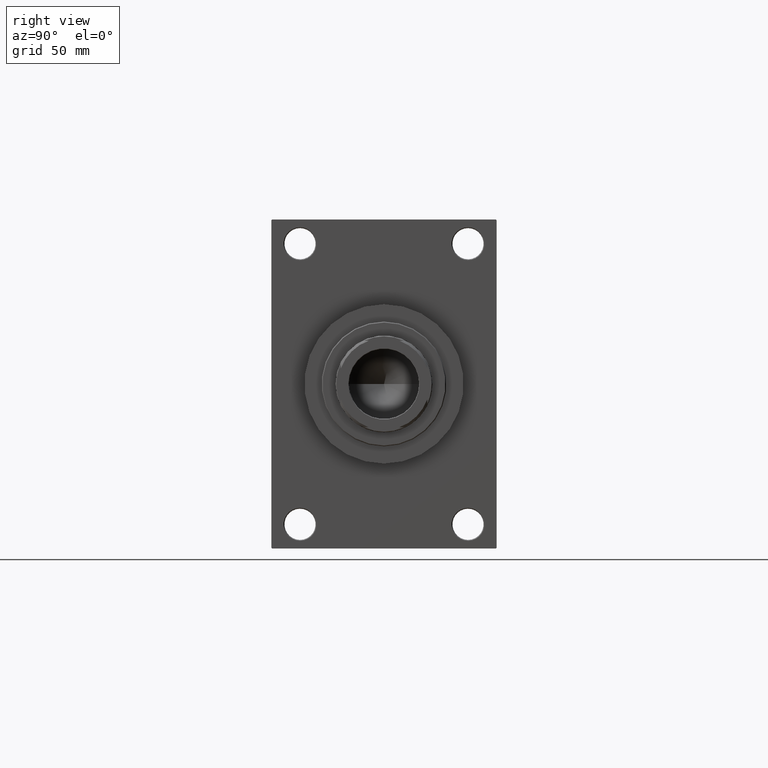
[diagram: clean part render]
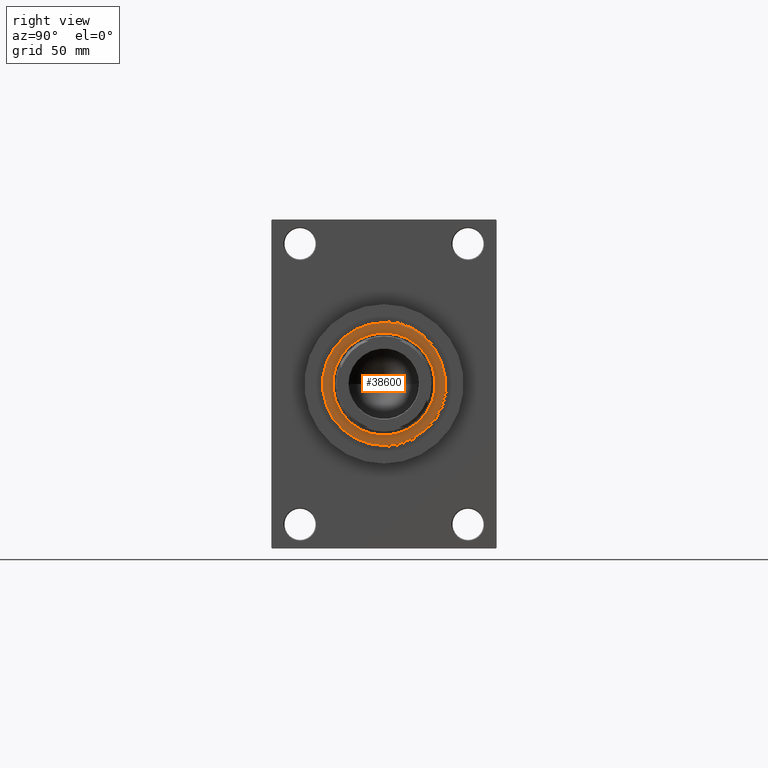
[diagram: same view with one face highlighted and labeled with its STEP entity id]
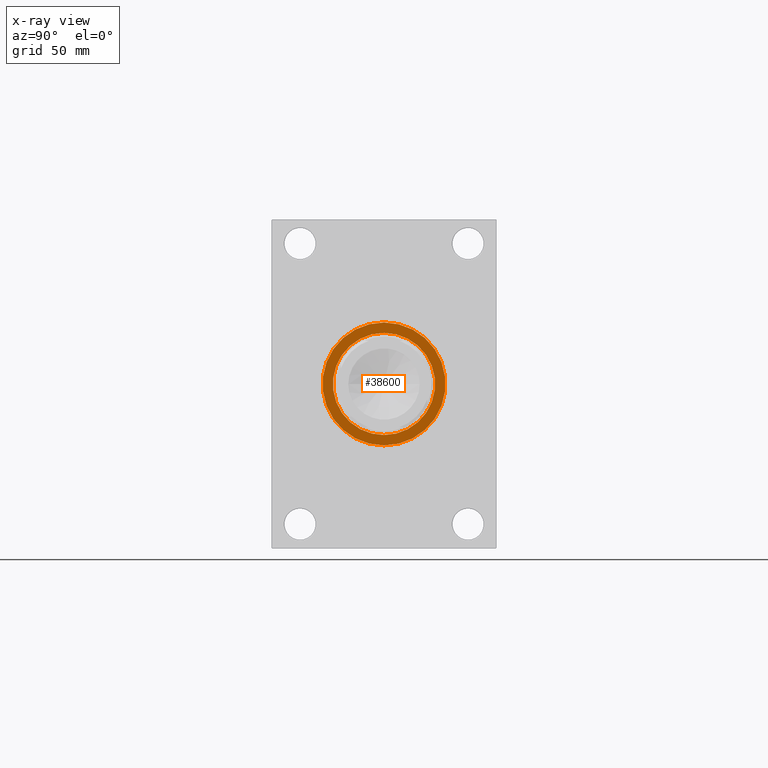
[diagram: x-ray of the same camera — body ghosted, the highlighted face saturated]
A machine part, right view. The second image highlights one B-rep face of the part: STEP entity #38600.
The next image is the same camera in x-ray: the body ghosted, the highlighted face saturated — about 0% of this face is hidden behind the body in this view.
In plain terms, the highlighted planar face has unit normal (1, -0, -0).
Its self-contained STEP definition (entity closure, byte-faithful):
#1254 = VERTEX_POINT ( 'NONE', #12916 ) ;
#1469 = CARTESIAN_POINT ( 'NONE',  ( -29.50000000000000355, 3.612708057484692393E-15, 53.26000000000000512 ) ) ;
#4085 = DIRECTION ( 'NONE',  ( 1.000000000000000000, 0.000000000000000000, 0.000000000000000000 ) ) ;
#4570 = DIRECTION ( 'NONE',  ( 1.000000000000000000, 0.000000000000000000, 0.000000000000000000 ) ) ;
#4724 = ORIENTED_EDGE ( 'NONE', *, *, #28175, .T. ) ;
#4999 = DIRECTION ( 'NONE',  ( 1.000000000000000000, 0.000000000000000000, 0.000000000000000000 ) ) ;
#5984 = VERTEX_POINT ( 'NONE', #1469 ) ;
#6297 = CIRCLE ( 'NONE', #14022, 35.50000000000001421 ) ;
#6835 = CIRCLE ( 'NONE', #39981, 29.50000000000000355 ) ;
#7874 = ORIENTED_EDGE ( 'NONE', *, *, #14613, .F. ) ;
#8692 = CIRCLE ( 'NONE', #41086, 29.50000000000000355 ) ;
#9866 = DIRECTION ( 'NONE',  ( 0.000000000000000000, 0.000000000000000000, 1.000000000000000000 ) ) ;
#12742 = PLANE ( 'NONE',  #30241 ) ;
#12916 = CARTESIAN_POINT ( 'NONE',  ( 35.50000000000001421, 4.378112306951788646E-15, 53.26000000000000512 ) ) ;
#13261 = CARTESIAN_POINT ( 'NONE',  ( 0.000000000000000000, 0.000000000000000000, 53.26000000000000512 ) ) ;
#13918 = CARTESIAN_POINT ( 'NONE',  ( -35.50000000000001421, 0.000000000000000000, 53.26000000000000512 ) ) ;
#14022 = AXIS2_PLACEMENT_3D ( 'NONE', #13261, #9866, #46808 ) ;
#14613 = EDGE_CURVE ( 'NONE', #26307, #5984, #6835, .T. ) ;
#14703 = DIRECTION ( 'NONE',  ( 0.000000000000000000, 0.000000000000000000, 1.000000000000000000 ) ) ;
#16110 = DIRECTION ( 'NONE',  ( 0.000000000000000000, 0.000000000000000000, 1.000000000000000000 ) ) ;
#16354 = FACE_BOUND ( 'NONE', #46643, .T. ) ;
#16823 = DIRECTION ( 'NONE',  ( 0.000000000000000000, 0.000000000000000000, 1.000000000000000000 ) ) ;
#17204 = VERTEX_POINT ( 'NONE', #13918 ) ;
#19776 = CARTESIAN_POINT ( 'NONE',  ( 0.000000000000000000, 0.000000000000000000, 53.26000000000000512 ) ) ;
#26307 = VERTEX_POINT ( 'NONE', #39741 ) ;
#26757 = DIRECTION ( 'NONE',  ( 0.000000000000000000, 0.000000000000000000, 1.000000000000000000 ) ) ;
#27213 = CIRCLE ( 'NONE', #32645, 35.50000000000001421 ) ;
#27685 = DIRECTION ( 'NONE',  ( 1.000000000000000000, 0.000000000000000000, -0.000000000000000000 ) ) ;
#28175 = EDGE_CURVE ( 'NONE', #17204, #1254, #27213, .T. ) ;
#29141 = ORIENTED_EDGE ( 'NONE', *, *, #43967, .F. ) ;
#30241 = AXIS2_PLACEMENT_3D ( 'NONE', #46282, #16110, #27685 ) ;
#32645 = AXIS2_PLACEMENT_3D ( 'NONE', #39813, #14703, #4085 ) ;
#33510 = ORIENTED_EDGE ( 'NONE', *, *, #37490, .T. ) ;
#34675 = CARTESIAN_POINT ( 'NONE',  ( 0.000000000000000000, 0.000000000000000000, 53.26000000000000512 ) ) ;
#37490 = EDGE_CURVE ( 'NONE', #1254, #17204, #6297, .T. ) ;
#38600 = ADVANCED_FACE ( 'NONE', ( #16354, #46046 ), #12742, .T. ) ;
#39741 = CARTESIAN_POINT ( 'NONE',  ( 29.50000000000000355, 0.000000000000000000, 53.26000000000000512 ) ) ;
#39813 = CARTESIAN_POINT ( 'NONE',  ( 0.000000000000000000, 0.000000000000000000, 53.26000000000000512 ) ) ;
#39981 = AXIS2_PLACEMENT_3D ( 'NONE', #19776, #26757, #4570 ) ;
#41086 = AXIS2_PLACEMENT_3D ( 'NONE', #34675, #16823, #4999 ) ;
#43967 = EDGE_CURVE ( 'NONE', #5984, #26307, #8692, .T. ) ;
#46046 = FACE_OUTER_BOUND ( 'NONE', #46202, .T. ) ;
#46202 = EDGE_LOOP ( 'NONE', ( #4724, #33510 ) ) ;
#46282 = CARTESIAN_POINT ( 'NONE',  ( 0.000000000000000000, 0.000000000000000000, 53.26000000000000512 ) ) ;
#46643 = EDGE_LOOP ( 'NONE', ( #7874, #29141 ) ) ;
#46808 = DIRECTION ( 'NONE',  ( 1.000000000000000000, 0.000000000000000000, 0.000000000000000000 ) ) ;